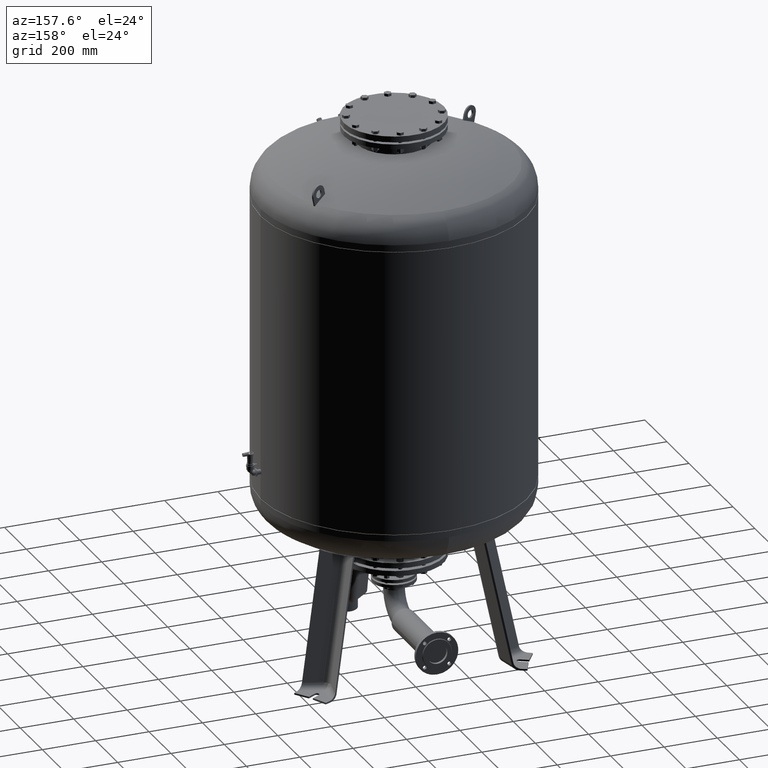
[diagram: clean part render]
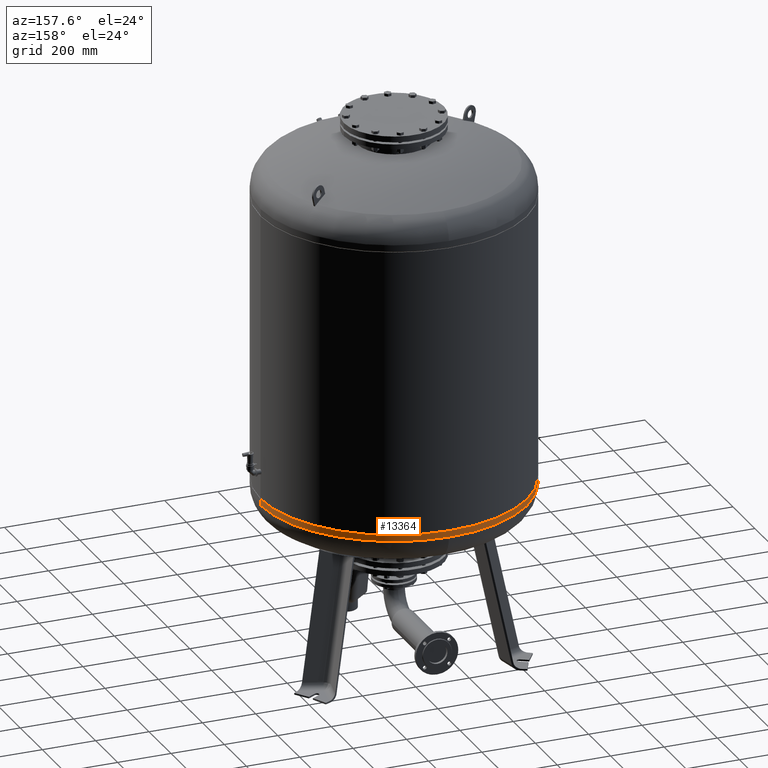
[diagram: same view with one face highlighted and labeled with its STEP entity id]
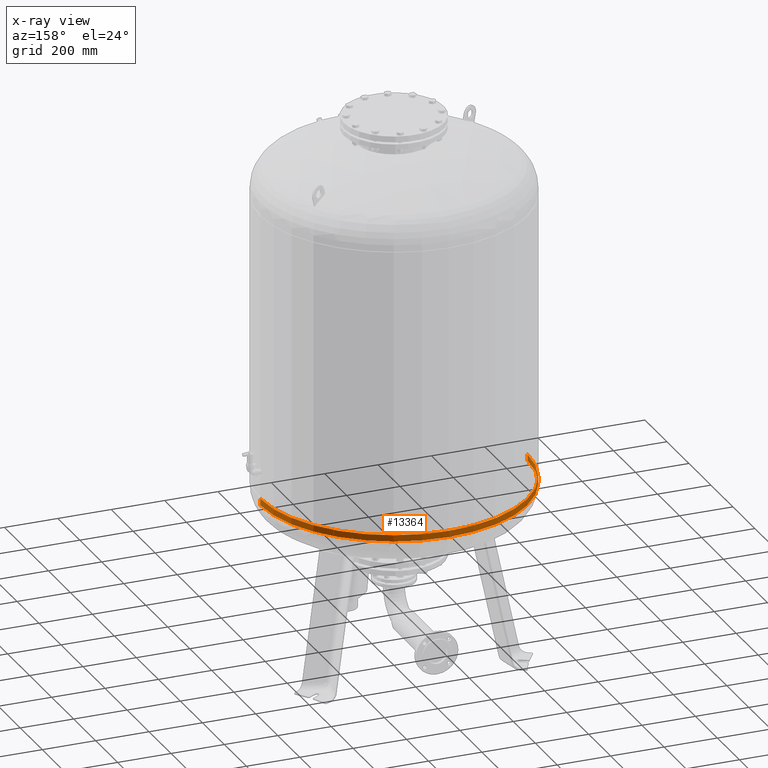
[diagram: x-ray of the same camera — body ghosted, the highlighted face saturated]
A machine part, auxiliary view. The second image highlights one B-rep face of the part: STEP entity #13364.
The next image is the same camera in x-ray: the body ghosted, the highlighted face saturated — about 2% of this face is hidden behind the body in this view.
In plain terms, the highlighted cylindrical surface (partial cylindrical patch) has radius 500 mm, axis along (-0, -0, 1).
Its self-contained STEP definition (entity closure, byte-faithful):
#13314=CARTESIAN_POINT('',(-2.756489E-014,-3.774564E-014,665.477677536359810));
#13315=DIRECTION('',(-1.341503E-016,-1.836970E-016,1.0));
#13316=DIRECTION('',(-1.0,0.0,0.0));
#13317=AXIS2_PLACEMENT_3D('',#13314,#13315,#13316);
#13318=CYLINDRICAL_SURFACE('',#13317,500.0);
#13319=CARTESIAN_POINT('',(-500.0,-3.995410E-014,677.500000000000000));
#13320=VERTEX_POINT('',#13319);
#13321=CARTESIAN_POINT('',(-500.0,-3.553717E-014,653.455355072719390));
#13322=VERTEX_POINT('',#13321);
#13323=CARTESIAN_POINT('',(-500.0,-3.995410E-014,677.500000000000000));
#13324=DIRECTION('',(0.0,0.0,-1.0));
#13325=VECTOR('',#13324,24.044644927280615);
#13326=LINE('',#13323,#13325);
#13327=EDGE_CURVE('',#13320,#13322,#13326,.T.);
#13328=ORIENTED_EDGE('',*,*,#13327,.F.);
#13329=CARTESIAN_POINT('',(500.0,2.127622E-014,677.500000000000110));
#13330=VERTEX_POINT('',#13329);
#13331=CARTESIAN_POINT('',(-2.917769E-014,-3.995410E-014,677.500000000000000));
#13332=DIRECTION('',(0.0,0.0,1.0));
#13333=DIRECTION('',(-1.0,0.0,0.0));
#13334=AXIS2_PLACEMENT_3D('',#13331,#13332,#13333);
#13335=CIRCLE('',#13334,500.0);
#13336=EDGE_CURVE('',#13330,#13320,#13335,.T.);
#13337=ORIENTED_EDGE('',*,*,#13336,.F.);
#13338=CARTESIAN_POINT('',(500.0,2.569315E-014,653.455355072719500));
#13339=VERTEX_POINT('',#13338);
#13340=CARTESIAN_POINT('',(500.0,2.127622E-014,677.500000000000110));
#13341=DIRECTION('',(0.0,0.0,-1.0));
#13342=VECTOR('',#13341,24.044644927280615);
#13343=LINE('',#13340,#13342);
#13344=EDGE_CURVE('',#13330,#13339,#13343,.T.);
#13345=ORIENTED_EDGE('',*,*,#13344,.T.);
#13346=CARTESIAN_POINT('',(-6.123032E-014,499.999999999999940,653.455355072719610));
#13347=VERTEX_POINT('',#13346);
#13348=CARTESIAN_POINT('',(-2.595210E-014,-3.553717E-014,653.455355072719500));
#13349=DIRECTION('',(0.0,0.0,1.0));
#13350=DIRECTION('',(-1.0,0.0,0.0));
#13351=AXIS2_PLACEMENT_3D('',#13348,#13349,#13350);
#13352=CIRCLE('',#13351,500.0);
#13353=EDGE_CURVE('',#13339,#13347,#13352,.T.);
#13354=ORIENTED_EDGE('',*,*,#13353,.T.);
#13355=CARTESIAN_POINT('',(-2.595210E-014,-3.553717E-014,653.455355072719500));
#13356=DIRECTION('',(0.0,0.0,1.0));
#13357=DIRECTION('',(-1.0,0.0,0.0));
#13358=AXIS2_PLACEMENT_3D('',#13355,#13356,#13357);
#13359=CIRCLE('',#13358,500.0);
#13360=EDGE_CURVE('',#13347,#13322,#13359,.T.);
#13361=ORIENTED_EDGE('',*,*,#13360,.T.);
#13362=EDGE_LOOP('',(#13328,#13337,#13345,#13354,#13361));
#13363=FACE_OUTER_BOUND('',#13362,.T.);
#13364=ADVANCED_FACE('',(#13363),#13318,.T.);